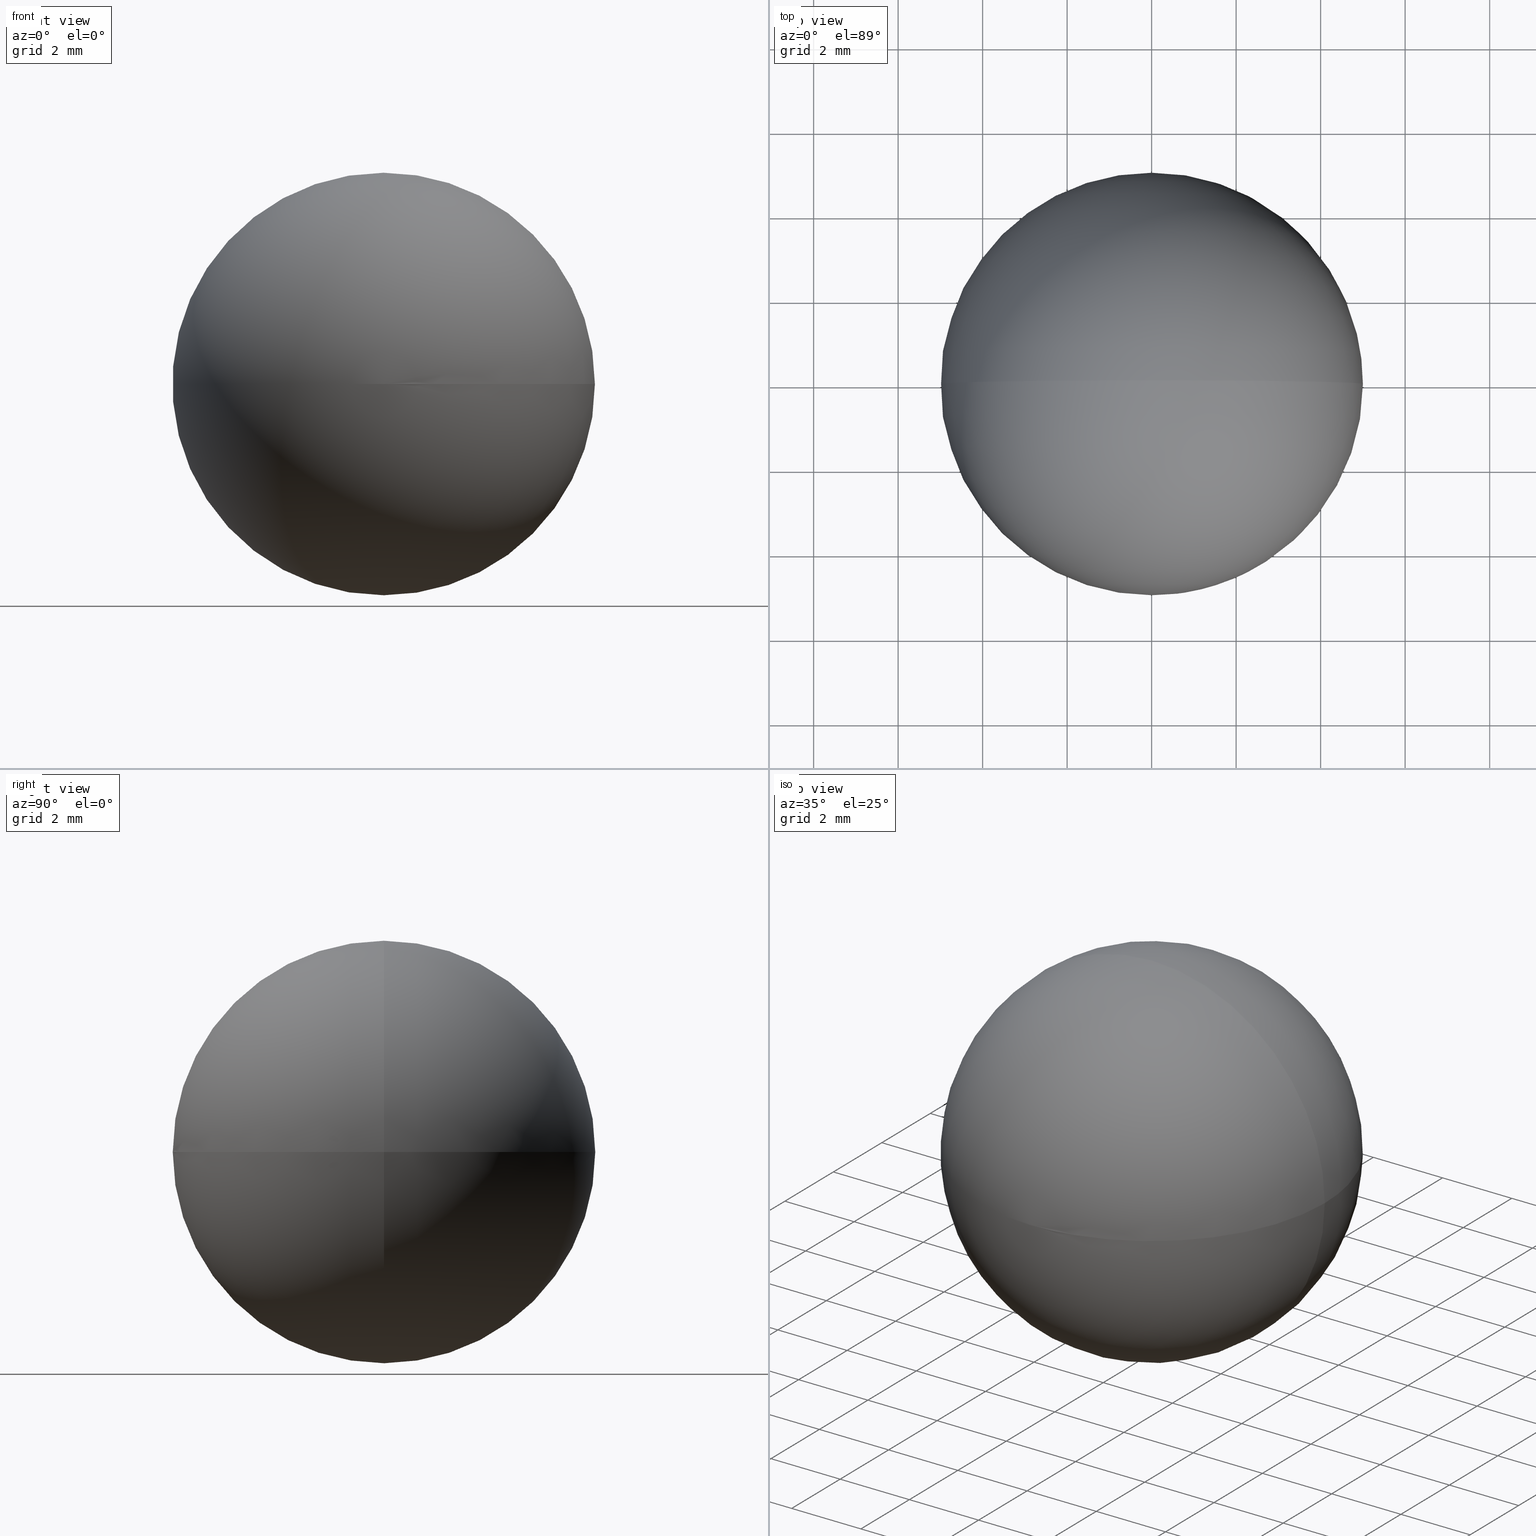
[diagram: canonical four-view strip — front | top / right | iso, engineering-drawing reading convention]
A machine part, canonical four-view strip (front | top / right | iso — engineering-drawing reading convention). The complete STEP part file that produces these views, byte-faithful:
ISO-10303-21;
HEADER;
FILE_DESCRIPTION (( 'STEP AP203' ),
    '1' );
FILE_NAME ('160009.STEP',
    '2019-06-05T05:56:19',
    ( '' ),
    ( '' ),
    'SwSTEP 2.0',
    'SolidWorks 2016',
    '' );
FILE_SCHEMA (( 'CONFIG_CONTROL_DESIGN' ));
ENDSEC;

DATA;
#1 = CC_DESIGN_APPROVAL ( #97, ( #81 ) ) ;
#2 = LOCAL_TIME ( 13, 56, 19.00000000000000000, #111 ) ;
#3 = CIRCLE ( 'NONE', #79, 5.000000000000000000 ) ;
#4 = DATE_TIME_ROLE ( 'classification_date' ) ;
#5 = SECURITY_CLASSIFICATION_LEVEL ( 'unclassified' ) ;
#6 = EDGE_CURVE ( 'NONE', #172, #42, #3, .T. ) ;
#7 = SECURITY_CLASSIFICATION_LEVEL ( 'unclassified' ) ;
#8 = APPROVAL_PERSON_ORGANIZATION ( #15, #167, #23 ) ;
#9 = COORDINATED_UNIVERSAL_TIME_OFFSET ( 8, 0, .AHEAD. ) ;
#10 = SPHERICAL_SURFACE ( 'NONE', #94, 5.000000000000000000 ) ;
#11 = DATE_AND_TIME ( #12, #64 ) ;
#12 = CALENDAR_DATE ( 2019, 5, 6 ) ;
#13 = PRODUCT_DEFINITION_SHAPE ( 'NONE', 'NONE',  #192 ) ;
#14 = CC_DESIGN_PERSON_AND_ORGANIZATION_ASSIGNMENT ( #148, #105, ( #81 ) ) ;
#15 = PERSON_AND_ORGANIZATION ( #43, #91 ) ;
#16 = FACE_OUTER_BOUND ( 'NONE', #183, .T. ) ;
#17 = COORDINATED_UNIVERSAL_TIME_OFFSET ( 8, 0, .AHEAD. ) ;
#18 = CARTESIAN_POINT ( 'NONE',  ( 0.0000000000000000000, 0.0000000000000000000, 0.0000000000000000000 ) ) ;
#19 = APPROVAL_DATE_TIME ( #67, #167 ) ;
#20 = DIRECTION ( 'NONE',  ( 1.224646799147353200E-016, -1.000000000000000000, 0.0000000000000000000 ) ) ;
#21 = MECHANICAL_CONTEXT ( 'NONE', #145, 'mechanical' ) ;
#22 = CC_DESIGN_PERSON_AND_ORGANIZATION_ASSIGNMENT ( #29, #92, ( #192 ) ) ;
#23 = APPROVAL_ROLE ( '' ) ;
#24 = APPROVAL_STATUS ( 'not_yet_approved' ) ;
#25 = APPLICATION_PROTOCOL_DEFINITION ( 'international standard', 'config_control_design', 1994, #145 ) ;
#26 = SECURITY_CLASSIFICATION ( '', '', #7 ) ;
#27 = APPROVAL_PERSON_ORGANIZATION ( #169, #97, #39 ) ;
#28 = LOCAL_TIME ( 13, 56, 19.00000000000000000, #153 ) ;
#29 = PERSON_AND_ORGANIZATION ( #43, #91 ) ;
#30 = CC_DESIGN_PERSON_AND_ORGANIZATION_ASSIGNMENT ( #78, #114, ( #128 ) ) ;
#31 = PERSON_AND_ORGANIZATION ( #43, #91 ) ;
#32 = FACE_OUTER_BOUND ( 'NONE', #104, .T. ) ;
#33 = CC_DESIGN_DATE_AND_TIME_ASSIGNMENT ( #63, #59, ( #192 ) ) ;
#34 = CC_DESIGN_PERSON_AND_ORGANIZATION_ASSIGNMENT ( #84, #106, ( #26 ) ) ;
#35 = AXIS2_PLACEMENT_3D ( 'NONE', #66, #127, #139 ) ;
#36 = DATE_AND_TIME ( #133, #28 ) ;
#37 = APPROVAL_STATUS ( 'not_yet_approved' ) ;
#38 = PERSON_AND_ORGANIZATION_ROLE ( 'design_supplier' ) ;
#39 = APPROVAL_ROLE ( '' ) ;
#40 = COORDINATED_UNIVERSAL_TIME_OFFSET ( 8, 0, .AHEAD. ) ;
#41 = PERSON_AND_ORGANIZATION_ROLE ( 'design_owner' ) ;
#42 = VERTEX_POINT ( 'NONE', #156 ) ;
#43 = PERSON ( 'δָ��', 'δָ��', 'δָ��', ('δָ��'), ('δָ��'), ('δָ��') ) ;
#44 = MANIFOLD_SOLID_BREP ( '��ת2', #126 ) ;
#45 = CC_DESIGN_PERSON_AND_ORGANIZATION_ASSIGNMENT ( #76, #118, ( #81 ) ) ;
#46 = CC_DESIGN_DATE_AND_TIME_ASSIGNMENT ( #150, #113, ( #26 ) ) ;
#47 = APPROVAL_PERSON_ORGANIZATION ( #174, #140, #103 ) ;
#48 = APPROVAL_PERSON_ORGANIZATION ( #137, #130, #199 ) ;
#49 = CC_DESIGN_DATE_AND_TIME_ASSIGNMENT ( #188, #4, ( #128 ) ) ;
#50 = CARTESIAN_POINT ( 'NONE',  ( 0.0000000000000000000, 0.0000000000000000000, 0.0000000000000000000 ) ) ;
#51 = DIRECTION ( 'NONE',  ( 1.000000000000000000, 0.0000000000000000000, 0.0000000000000000000 ) ) ;
#52 = PERSON_AND_ORGANIZATION ( #43, #91 ) ;
#53 = LOCAL_TIME ( 13, 56, 19.00000000000000000, #189 ) ;
#54 = DESIGN_CONTEXT ( 'detailed design', #56, 'design' ) ;
#55 = APPLICATION_CONTEXT ( 'configuration controlled 3d designs of mechanical parts and assemblies' ) ;
#56 = APPLICATION_CONTEXT ( 'configuration controlled 3d designs of mechanical parts and assemblies' ) ;
#57 = PERSON_AND_ORGANIZATION ( #43, #91 ) ;
#58 = APPROVAL_PERSON_ORGANIZATION ( #74, #60, #176 ) ;
#59 = DATE_TIME_ROLE ( 'creation_date' ) ;
#60 = APPROVAL ( #37, 'δָ��' ) ;
#61 = ADVANCED_BREP_SHAPE_REPRESENTATION ( '160009', ( #44, #154 ), #198 ) ;
#62 = CALENDAR_DATE ( 2019, 5, 6 ) ;
#63 = DATE_AND_TIME ( #109, #53 ) ;
#64 = LOCAL_TIME ( 13, 56, 19.00000000000000000, #17 ) ;
#65 = SPHERICAL_SURFACE ( 'NONE', #35, 5.000000000000000000 ) ;
#66 = CARTESIAN_POINT ( 'NONE',  ( 0.0000000000000000000, 0.0000000000000000000, 0.0000000000000000000 ) ) ;
#67 = DATE_AND_TIME ( #196, #93 ) ;
#68 =( NAMED_UNIT ( * ) PLANE_ANGLE_UNIT ( ) SI_UNIT ( $, .RADIAN. ) );
#69 = CC_DESIGN_APPROVAL ( #130, ( #136 ) ) ;
#70 = APPROVAL_STATUS ( 'not_yet_approved' ) ;
#71 = ORIENTED_EDGE ( 'NONE', *, *, #203, .F. ) ;
#72 = APPLICATION_PROTOCOL_DEFINITION ( 'international standard', 'config_control_design', 1994, #56 ) ;
#73 = PERSON_AND_ORGANIZATION_ROLE ( 'design_owner' ) ;
#74 = PERSON_AND_ORGANIZATION ( #43, #91 ) ;
#75 = APPROVAL_STATUS ( 'not_yet_approved' ) ;
#76 = PERSON_AND_ORGANIZATION ( #43, #91 ) ;
#77 = AXIS2_PLACEMENT_3D ( 'NONE', #50, #99, #90 ) ;
#78 = PERSON_AND_ORGANIZATION ( #43, #91 ) ;
#79 = AXIS2_PLACEMENT_3D ( 'NONE', #18, #20, #175 ) ;
#80 = DATE_AND_TIME ( #62, #202 ) ;
#81 = PRODUCT_DEFINITION_FORMATION_WITH_SPECIFIED_SOURCE ( '�κ�', '', #96, .NOT_KNOWN. ) ;
#82 = DATE_AND_TIME ( #185, #2 ) ;
#83 = DIRECTION ( 'NONE',  ( 0.0000000000000000000, 0.0000000000000000000, 1.000000000000000000 ) ) ;
#84 = PERSON_AND_ORGANIZATION ( #43, #91 ) ;
#85 = DIRECTION ( 'NONE',  ( 0.0000000000000000000, -1.000000000000000000, -0.0000000000000000000 ) ) ;
#86 = CALENDAR_DATE ( 2019, 5, 6 ) ;
#87 = CALENDAR_DATE ( 2019, 5, 6 ) ;
#88 = DIRECTION ( 'NONE',  ( 1.000000000000000000, 0.0000000000000000000, 0.0000000000000000000 ) ) ;
#89 = CC_DESIGN_PERSON_AND_ORGANIZATION_ASSIGNMENT ( #57, #73, ( #107 ) ) ;
#90 = DIRECTION ( 'NONE',  ( 1.000000000000000000, 0.0000000000000000000, 0.0000000000000000000 ) ) ;
#91 = ORGANIZATION ( 'δָ��', 'δָ��', '' ) ;
#92 = PERSON_AND_ORGANIZATION_ROLE ( 'creator' ) ;
#93 = LOCAL_TIME ( 13, 56, 19.00000000000000000, #170 ) ;
#94 = AXIS2_PLACEMENT_3D ( 'NONE', #141, #85, #88 ) ;
#95 = PERSON_AND_ORGANIZATION ( #43, #91 ) ;
#96 = PRODUCT ( '160009', '160009', '', ( #159 ) ) ;
#97 = APPROVAL ( #70, 'δָ��' ) ;
#98 = CC_DESIGN_PERSON_AND_ORGANIZATION_ASSIGNMENT ( #95, #163, ( #136 ) ) ;
#99 = DIRECTION ( 'NONE',  ( 0.0000000000000000000, 0.0000000000000000000, 1.000000000000000000 ) ) ;
#100 = DIRECTION ( 'NONE',  ( 0.0000000000000000000, 0.0000000000000000000, 1.000000000000000000 ) ) ;
#101 = DATE_AND_TIME ( #161, #193 ) ;
#102 = DIRECTION ( 'NONE',  ( 0.0000000000000000000, 1.000000000000000000, -0.0000000000000000000 ) ) ;
#103 = APPROVAL_ROLE ( '' ) ;
#104 = EDGE_LOOP ( 'NONE', ( #157, #121 ) ) ;
#105 = PERSON_AND_ORGANIZATION_ROLE ( 'design_supplier' ) ;
#106 = PERSON_AND_ORGANIZATION_ROLE ( 'classification_officer' ) ;
#107 = PRODUCT ( '160009', '160009', '', ( #21 ) ) ;
#108 = PERSON_AND_ORGANIZATION ( #43, #91 ) ;
#109 = CALENDAR_DATE ( 2019, 5, 6 ) ;
#110 = CC_DESIGN_DATE_AND_TIME_ASSIGNMENT ( #36, #116, ( #136 ) ) ;
#111 = COORDINATED_UNIVERSAL_TIME_OFFSET ( 8, 0, .AHEAD. ) ;
#112 = CC_DESIGN_APPROVAL ( #60, ( #26 ) ) ;
#113 = DATE_TIME_ROLE ( 'classification_date' ) ;
#114 = PERSON_AND_ORGANIZATION_ROLE ( 'classification_officer' ) ;
#115 = PRODUCT_DEFINITION_FORMATION_WITH_SPECIFIED_SOURCE ( '�κ�', '', #107, .NOT_KNOWN. ) ;
#116 = DATE_TIME_ROLE ( 'creation_date' ) ;
#117 = APPROVAL_DATE_TIME ( #82, #119 ) ;
#118 = PERSON_AND_ORGANIZATION_ROLE ( 'creator' ) ;
#119 = APPROVAL ( #146, 'δָ��' ) ;
#120 = APPROVAL_DATE_TIME ( #80, #130 ) ;
#121 = ORIENTED_EDGE ( 'NONE', *, *, #203, .T. ) ;
#122 = LOCAL_TIME ( 13, 56, 19.00000000000000000, #165 ) ;
#123 = CC_DESIGN_APPROVAL ( #119, ( #115 ) ) ;
#124 = ORIENTED_EDGE ( 'NONE', *, *, #6, .T. ) ;
#125 = COORDINATED_UNIVERSAL_TIME_OFFSET ( 8, 0, .AHEAD. ) ;
#126 = CLOSED_SHELL ( 'NONE', ( #132, #164 ) ) ;
#127 = DIRECTION ( 'NONE',  ( 0.0000000000000000000, -1.000000000000000000, -0.0000000000000000000 ) ) ;
#128 = SECURITY_CLASSIFICATION ( '', '', #5 ) ;
#129 = APPROVAL_ROLE ( '' ) ;
#130 = APPROVAL ( #178, 'δָ��' ) ;
#131 = APPLICATION_PROTOCOL_DEFINITION ( 'international standard', 'config_control_design', 1994, #55 ) ;
#132 = ADVANCED_FACE ( 'NONE', ( #16 ), #10, .T. ) ;
#133 = CALENDAR_DATE ( 2019, 5, 6 ) ;
#134 = CC_DESIGN_PERSON_AND_ORGANIZATION_ASSIGNMENT ( #108, #38, ( #115 ) ) ;
#135 = PERSON_AND_ORGANIZATION ( #43, #91 ) ;
#136 = PRODUCT_DEFINITION ( 'δ֪', '', #115, #184 ) ;
#137 = PERSON_AND_ORGANIZATION ( #43, #91 ) ;
#138 = PRODUCT_RELATED_PRODUCT_CATEGORY ( 'detail', '', ( #96 ) ) ;
#139 = DIRECTION ( 'NONE',  ( 1.000000000000000000, 0.0000000000000000000, 0.0000000000000000000 ) ) ;
#140 = APPROVAL ( #24, 'δָ��' ) ;
#141 = CARTESIAN_POINT ( 'NONE',  ( 0.0000000000000000000, 0.0000000000000000000, 0.0000000000000000000 ) ) ;
#142 = UNCERTAINTY_MEASURE_WITH_UNIT (LENGTH_MEASURE( 1.000000000000000100E-005 ), #173, 'distance_accuracy_value', 'NONE');
#143 = CARTESIAN_POINT ( 'NONE',  ( 0.0000000000000000000, 0.0000000000000000000, 0.0000000000000000000 ) ) ;
#144 = APPROVAL_DATE_TIME ( #101, #97 ) ;
#145 = APPLICATION_CONTEXT ( 'configuration controlled 3d designs of mechanical parts and assemblies' ) ;
#146 = APPROVAL_STATUS ( 'not_yet_approved' ) ;
#147 = PRODUCT_RELATED_PRODUCT_CATEGORY ( 'detail', '', ( #107 ) ) ;
#148 = PERSON_AND_ORGANIZATION ( #43, #91 ) ;
#149 = CC_DESIGN_PERSON_AND_ORGANIZATION_ASSIGNMENT ( #52, #158, ( #115 ) ) ;
#150 = DATE_AND_TIME ( #197, #155 ) ;
#151 = CIRCLE ( 'NONE', #182, 5.000000000000000000 ) ;
#152 = CC_DESIGN_SECURITY_CLASSIFICATION ( #26, ( #81 ) ) ;
#153 = COORDINATED_UNIVERSAL_TIME_OFFSET ( 8, 0, .AHEAD. ) ;
#154 = AXIS2_PLACEMENT_3D ( 'NONE', #143, #100, #51 ) ;
#155 = LOCAL_TIME ( 13, 56, 19.00000000000000000, #40 ) ;
#156 = CARTESIAN_POINT ( 'NONE',  ( 3.061616997868383100E-016, 0.0000000000000000000, -5.000000000000000000 ) ) ;
#157 = ORIENTED_EDGE ( 'NONE', *, *, #6, .F. ) ;
#158 = PERSON_AND_ORGANIZATION_ROLE ( 'creator' ) ;
#159 = MECHANICAL_CONTEXT ( 'NONE', #177, 'mechanical' ) ;
#160 = APPROVAL_PERSON_ORGANIZATION ( #31, #119, #129 ) ;
#161 = CALENDAR_DATE ( 2019, 5, 6 ) ;
#162 = CC_DESIGN_APPROVAL ( #140, ( #192 ) ) ;
#163 = PERSON_AND_ORGANIZATION_ROLE ( 'creator' ) ;
#164 = ADVANCED_FACE ( 'NONE', ( #32 ), #65, .T. ) ;
#165 = COORDINATED_UNIVERSAL_TIME_OFFSET ( 8, 0, .AHEAD. ) ;
#166 = LOCAL_TIME ( 13, 56, 19.00000000000000000, #125 ) ;
#167 = APPROVAL ( #75, 'δָ��' ) ;
#168 = COORDINATED_UNIVERSAL_TIME_OFFSET ( 8, 0, .AHEAD. ) ;
#169 = PERSON_AND_ORGANIZATION ( #43, #91 ) ;
#170 = COORDINATED_UNIVERSAL_TIME_OFFSET ( 8, 0, .AHEAD. ) ;
#171 = CC_DESIGN_PERSON_AND_ORGANIZATION_ASSIGNMENT ( #135, #41, ( #96 ) ) ;
#172 = VERTEX_POINT ( 'NONE', #190 ) ;
#173 =( LENGTH_UNIT ( ) NAMED_UNIT ( * ) SI_UNIT ( .MILLI., .METRE. ) );
#174 = PERSON_AND_ORGANIZATION ( #43, #91 ) ;
#175 = DIRECTION ( 'NONE',  ( 1.000000000000000000, 1.224646799147353200E-016, 0.0000000000000000000 ) ) ;
#176 = APPROVAL_ROLE ( '' ) ;
#177 = APPLICATION_CONTEXT ( 'configuration controlled 3d designs of mechanical parts and assemblies' ) ;
#178 = APPROVAL_STATUS ( 'not_yet_approved' ) ;
#179 = PRODUCT_DEFINITION_SHAPE ( 'NONE', 'NONE',  #136 ) ;
#180 = APPLICATION_PROTOCOL_DEFINITION ( 'international standard', 'config_control_design', 1994, #177 ) ;
#181 = SHAPE_DEFINITION_REPRESENTATION ( #13, #61 ) ;
#182 = AXIS2_PLACEMENT_3D ( 'NONE', #191, #102, #83 ) ;
#183 = EDGE_LOOP ( 'NONE', ( #71, #124 ) ) ;
#184 = DESIGN_CONTEXT ( 'detailed design', #55, 'design' ) ;
#185 = CALENDAR_DATE ( 2019, 5, 6 ) ;
#186 = CC_DESIGN_APPROVAL ( #167, ( #128 ) ) ;
#187 =( NAMED_UNIT ( * ) SI_UNIT ( $, .STERADIAN. ) SOLID_ANGLE_UNIT ( ) );
#188 = DATE_AND_TIME ( #87, #166 ) ;
#189 = COORDINATED_UNIVERSAL_TIME_OFFSET ( 8, 0, .AHEAD. ) ;
#190 = CARTESIAN_POINT ( 'NONE',  ( 3.061616997868383100E-016, 0.0000000000000000000, 5.000000000000000000 ) ) ;
#191 = CARTESIAN_POINT ( 'NONE',  ( 0.0000000000000000000, 0.0000000000000000000, 0.0000000000000000000 ) ) ;
#192 = PRODUCT_DEFINITION ( 'δ֪', '', #81, #54 ) ;
#193 = LOCAL_TIME ( 13, 56, 19.00000000000000000, #168 ) ;
#194 = APPROVAL_DATE_TIME ( #200, #140 ) ;
#195 = APPROVAL_DATE_TIME ( #11, #60 ) ;
#196 = CALENDAR_DATE ( 2019, 5, 6 ) ;
#197 = CALENDAR_DATE ( 2019, 5, 6 ) ;
#198 =( GEOMETRIC_REPRESENTATION_CONTEXT ( 3 ) GLOBAL_UNCERTAINTY_ASSIGNED_CONTEXT ( ( #142 ) ) GLOBAL_UNIT_ASSIGNED_CONTEXT ( ( #173, #68, #187 ) ) REPRESENTATION_CONTEXT ( 'NONE', 'WORKASPACE' ) );
#199 = APPROVAL_ROLE ( '' ) ;
#200 = DATE_AND_TIME ( #86, #122 ) ;
#201 = CC_DESIGN_SECURITY_CLASSIFICATION ( #128, ( #115 ) ) ;
#202 = LOCAL_TIME ( 13, 56, 19.00000000000000000, #9 ) ;
#203 = EDGE_CURVE ( 'NONE', #172, #42, #151, .T. ) ;
ENDSEC;
END-ISO-10303-21;
